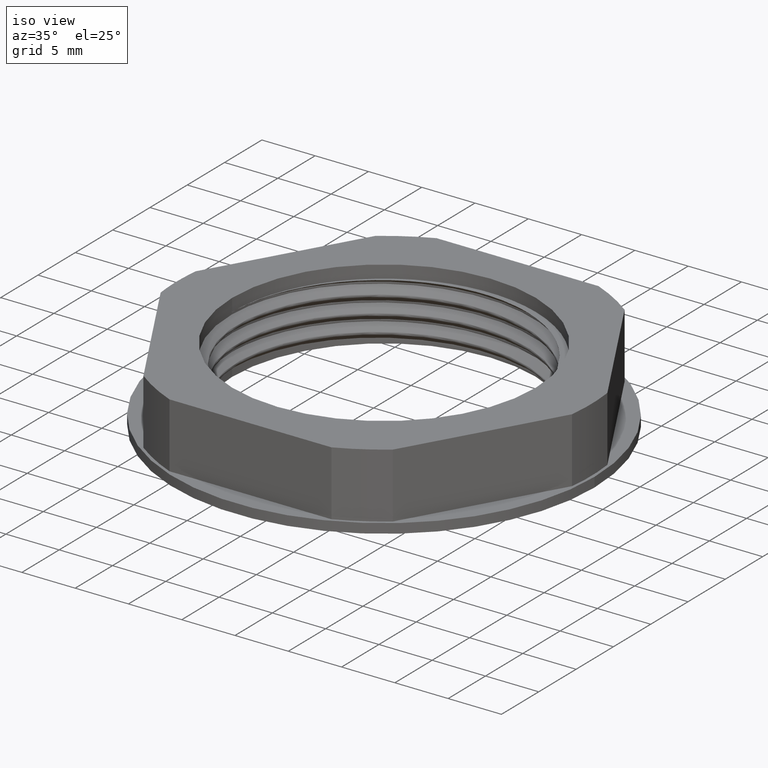
[diagram: clean part render]
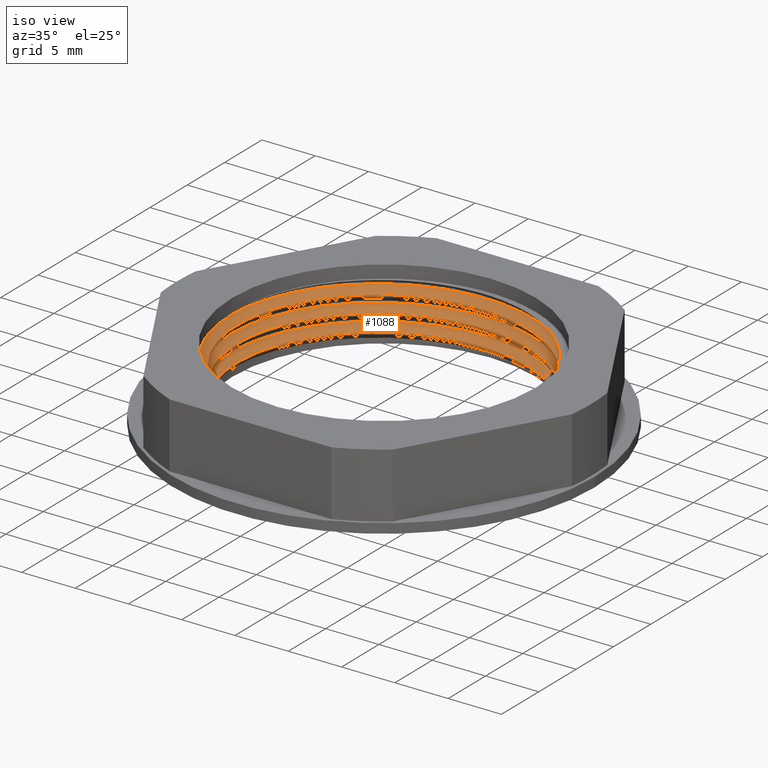
[diagram: same view with one face highlighted and labeled with its STEP entity id]
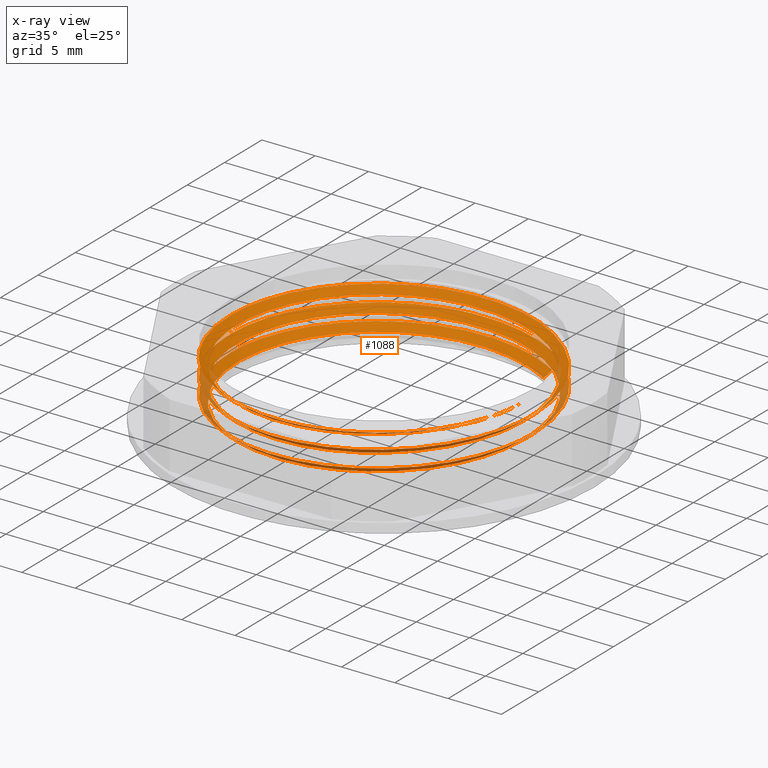
[diagram: x-ray of the same camera — body ghosted, the highlighted face saturated]
A machine part, iso view. The second image highlights one B-rep face of the part: STEP entity #1088.
The next image is the same camera in x-ray: the body ghosted, the highlighted face saturated — about 6% of this face is hidden behind the body in this view.
In plain terms, the highlighted face is a freeform B-spline surface patch.
Its self-contained STEP definition (entity closure, byte-faithful):
#367 = CARTESIAN_POINT ( 'NONE',  ( 2351.256202455848300, 862.0104033552461300, 19.02106889814721000 ) ) ;
#368 = CARTESIAN_POINT ( 'NONE',  ( 2356.367954869249800, 859.0591317233379400, 19.12031889814720400 ) ) ;
#369 = CARTESIAN_POINT ( 'NONE',  ( 2361.479707282652300, 856.1078600914298700, 19.21956889814720200 ) ) ;
#371 = CARTESIAN_POINT ( 'NONE',  ( 2370.617954869250300, 883.7408557311941900, 18.32631889814720300 ) ) ;
#373 = CARTESIAN_POINT ( 'NONE',  ( 2367.181126261960800, 857.6355507026470400, 19.31881889814720300 ) ) ;
#374 = CARTESIAN_POINT ( 'NONE',  ( 2375.833816873178000, 864.2749937272664100, 19.51731889814720600 ) ) ;
#376 = CARTESIAN_POINT ( 'NONE',  ( 2359.804783476538900, 885.1644367518852100, 18.52481889814720300 ) ) ;
#377 = CARTESIAN_POINT ( 'NONE',  ( 2378.785088505086200, 869.3867461406681500, 19.61656889814720400 ) ) ;
#379 = CARTESIAN_POINT ( 'NONE',  ( 2370.617954869250300, 883.7408557311941900, 19.91431889814720800 ) ) ;
#380 = CARTESIAN_POINT ( 'NONE',  ( 2365.506202455847900, 886.6921273631023700, 20.01356889814720900 ) ) ;
#381 = CARTESIAN_POINT ( 'NONE',  ( 2354.103364497230800, 883.6367461406678100, 20.21206889814720500 ) ) ;
#383 = CARTESIAN_POINT ( 'NONE',  ( 2354.103364497230800, 883.6367461406678100, 18.62406889814721100 ) ) ;
#384 = CARTESIAN_POINT ( 'NONE',  ( 2351.152092865321700, 878.5249937272658400, 20.31131889814720300 ) ) ;
#389 = CARTESIAN_POINT ( 'NONE',  ( 2377.257397893868500, 875.0881651199770200, 19.71581889814720500 ) ) ;
#390 = CARTESIAN_POINT ( 'NONE',  ( 2348.200821233413500, 873.4132413138639800, 20.41056889814720100 ) ) ;
#391 = CARTESIAN_POINT ( 'NONE',  ( 2349.728511844631600, 867.7118223345551100, 20.50981889814720600 ) ) ;
#396 = CARTESIAN_POINT ( 'NONE',  ( 2365.506202455847900, 886.6921273631023700, 18.42556889814720800 ) ) ;
#397 = FACE_OUTER_BOUND ( 'NONE', #1522, .T. ) ;
#399 = CARTESIAN_POINT ( 'NONE',  ( 2372.882545241269800, 859.1632413138643200, 19.41806889814720400 ) ) ;
#401 = CARTESIAN_POINT ( 'NONE',  ( 2375.729707282650900, 880.7895840992860000, 19.81506889814720700 ) ) ;
#403 = CARTESIAN_POINT ( 'NONE',  ( 2348.200821233413500, 873.4132413138639800, 18.82256889814720300 ) ) ;
#405 = CARTESIAN_POINT ( 'NONE',  ( 2359.804783476538900, 885.1644367518852100, 20.11281889814720400 ) ) ;
#419 = CARTESIAN_POINT ( 'NONE',  ( 2351.152092865321700, 878.5249937272658400, 18.72331889814720500 ) ) ;
#422 = CARTESIAN_POINT ( 'NONE',  ( 2349.728511844631600, 867.7118223345551100, 18.92181889814720100 ) ) ;
#423 = CARTESIAN_POINT ( 'NONE',  ( 2348.200821233413500, 873.4132413138639800, 23.58656889814721300 ) ) ;
#424 = CARTESIAN_POINT ( 'NONE',  ( 2375.833816873178000, 864.2749937272664100, 24.28131889814720500 ) ) ;
#425 = CARTESIAN_POINT ( 'NONE',  ( 2377.257397893868500, 875.0881651199770200, 24.47981889814720800 ) ) ;
#426 = CARTESIAN_POINT ( 'NONE',  ( 2359.804783476538900, 885.1644367518852100, 24.87681889814720300 ) ) ;
#427 = CARTESIAN_POINT ( 'NONE',  ( 2372.882545241269800, 859.1632413138643200, 22.59406889814720300 ) ) ;
#428 = CARTESIAN_POINT ( 'NONE',  ( 2375.729707282650900, 880.7895840992860000, 21.40306889814720000 ) ) ;
#429 = CARTESIAN_POINT ( 'NONE',  ( 2365.506202455847900, 886.6921273631023700, 21.60156889814721000 ) ) ;
#430 = CARTESIAN_POINT ( 'NONE',  ( 2375.833816873178000, 864.2749937272664100, 22.69331889814720800 ) ) ;
#431 = CARTESIAN_POINT ( 'NONE',  ( 2377.257397893868500, 875.0881651199770200, 22.89181889814720300 ) ) ;
#432 = CARTESIAN_POINT ( 'NONE',  ( 2351.152092865321700, 878.5249937272658400, 25.07531889814720200 ) ) ;
#433 = CARTESIAN_POINT ( 'NONE',  ( 2348.200821233413500, 873.4132413138639800, 25.17456889814720400 ) ) ;
#434 = CARTESIAN_POINT ( 'NONE',  ( 2375.729707282650900, 880.7895840992860000, 24.57906889814720200 ) ) ;
#435 = CARTESIAN_POINT ( 'NONE',  ( 2351.152092865321700, 878.5249937272658400, 23.48731889814720100 ) ) ;
#436 = CARTESIAN_POINT ( 'NONE',  ( 2370.617954869250300, 883.7408557311941900, 24.67831889814720400 ) ) ;
#437 = CARTESIAN_POINT ( 'NONE',  ( 2356.367954869249800, 859.0591317233379400, 22.29631889814720600 ) ) ;
#438 = CARTESIAN_POINT ( 'NONE',  ( 2349.728511844631600, 867.7118223345551100, 25.27381889814720100 ) ) ;
#439 = CARTESIAN_POINT ( 'NONE',  ( 2351.256202455848300, 862.0104033552461300, 22.19706889814720100 ) ) ;
#440 = CARTESIAN_POINT ( 'NONE',  ( 2361.479707282652300, 856.1078600914298700, 22.39556889814720400 ) ) ;
#441 = CARTESIAN_POINT ( 'NONE',  ( 2354.103364497230800, 883.6367461406678100, 24.97606889814720400 ) ) ;
#442 = CARTESIAN_POINT ( 'NONE',  ( 2365.506202455847900, 886.6921273631023700, 24.77756889814721200 ) ) ;
#443 = CARTESIAN_POINT ( 'NONE',  ( 2349.728511844631600, 867.7118223345551100, 22.09781889814720300 ) ) ;
#444 = CARTESIAN_POINT ( 'NONE',  ( 2356.367954869249800, 859.0591317233379400, 20.70831889814720100 ) ) ;
#445 = CARTESIAN_POINT ( 'NONE',  ( 2378.785088505086200, 869.3867461406681500, 21.20456889814720500 ) ) ;
#446 = CARTESIAN_POINT ( 'NONE',  ( 2361.479707282652300, 856.1078600914298700, 20.80756889814720300 ) ) ;
#447 = CARTESIAN_POINT ( 'NONE',  ( 2377.257397893868500, 875.0881651199770200, 21.30381889814721000 ) ) ;
#448 = CARTESIAN_POINT ( 'NONE',  ( 2375.833816873178000, 864.2749937272664100, 21.10531889814720300 ) ) ;
#449 = CARTESIAN_POINT ( 'NONE',  ( 2372.882545241269800, 859.1632413138643200, 21.00606889814720200 ) ) ;
#450 = CARTESIAN_POINT ( 'NONE',  ( 2351.256202455848300, 862.0104033552461300, 20.60906889814720300 ) ) ;
#451 = CARTESIAN_POINT ( 'NONE',  ( 2370.617954869250300, 883.7408557311941900, 21.50231889814720200 ) ) ;
#452 = CARTESIAN_POINT ( 'NONE',  ( 2354.103364497230800, 883.6367461406678100, 21.80006889814720200 ) ) ;
#453 = CARTESIAN_POINT ( 'NONE',  ( 2367.181126261960800, 857.6355507026470400, 20.90681889814720400 ) ) ;
#454 = CARTESIAN_POINT ( 'NONE',  ( 2351.152092865321700, 878.5249937272658400, 21.89931889814720400 ) ) ;
#455 = CARTESIAN_POINT ( 'NONE',  ( 2348.200821233413500, 873.4132413138639800, 21.99856889814720500 ) ) ;
#456 = CARTESIAN_POINT ( 'NONE',  ( 2367.181126261960800, 857.6355507026470400, 22.49481889814720100 ) ) ;
#457 = CARTESIAN_POINT ( 'NONE',  ( 2370.617954869250300, 883.7408557311941900, 23.09031889814720300 ) ) ;
#458 = CARTESIAN_POINT ( 'NONE',  ( 2365.506202455847900, 886.6921273631023700, 23.18956889814721500 ) ) ;
#459 = CARTESIAN_POINT ( 'NONE',  ( 2354.103364497230800, 883.6367461406678100, 23.38806889814720300 ) ) ;
#460 = CARTESIAN_POINT ( 'NONE',  ( 2349.728511844631600, 867.7118223345551100, 23.68581889814720400 ) ) ;
#461 = CARTESIAN_POINT ( 'NONE',  ( 2351.256202455848300, 862.0104033552461300, 23.78506889814720200 ) ) ;
#462 = CARTESIAN_POINT ( 'NONE',  ( 2367.181126261960800, 857.6355507026470400, 24.08281889814720600 ) ) ;
#463 = CARTESIAN_POINT ( 'NONE',  ( 2378.785088505086200, 869.3867461406681500, 22.79256889814720200 ) ) ;
#464 = CARTESIAN_POINT ( 'NONE',  ( 2356.367954869249800, 859.0591317233379400, 23.88431889814720300 ) ) ;
#465 = CARTESIAN_POINT ( 'NONE',  ( 2372.882545241269800, 859.1632413138643200, 24.18206889814720000 ) ) ;
#466 = CARTESIAN_POINT ( 'NONE',  ( 2361.479707282652300, 856.1078600914298700, 23.98356889814721200 ) ) ;
#467 = CARTESIAN_POINT ( 'NONE',  ( 2378.785088505086200, 869.3867461406681500, 24.38056889814721000 ) ) ;
#468 = CARTESIAN_POINT ( 'NONE',  ( 2359.804783476538900, 885.1644367518852100, 21.70081889814720100 ) ) ;
#469 = CARTESIAN_POINT ( 'NONE',  ( 2359.804783476538900, 885.1644367518852100, 23.28881889814720600 ) ) ;
#470 = CARTESIAN_POINT ( 'NONE',  ( 2375.729707282650900, 880.7895840992860000, 22.99106889814720100 ) ) ;
#471 = CARTESIAN_POINT ( 'NONE',  ( 2367.000879983597800, 858.3082389713724800, 18.73445469250918900 ) ) ;
#472 = CARTESIAN_POINT ( 'NONE',  ( 2370.269745798523200, 883.1377399290399800, 19.32995469250919400 ) ) ;
#473 = CARTESIAN_POINT ( 'NONE',  ( 2365.407812130055400, 885.9447786413123800, 17.84120469250918700 ) ) ;
#474 = CARTESIAN_POINT ( 'NONE',  ( 2354.562247379748000, 883.0387183250078400, 18.03970469250919400 ) ) ;
#475 = CARTESIAN_POINT ( 'NONE',  ( 2350.112960074550800, 866.2770420076134300, 25.29879547818205800 ) ) ;
#476 = CARTESIAN_POINT ( 'NONE',  ( 2376.584709625143700, 874.9079188416142200, 20.71945469250919600 ) ) ;
#477 = CARTESIAN_POINT ( 'NONE',  ( 2361.578097608444300, 856.8552088132200900, 20.22320469250918900 ) ) ;
#478 = CARTESIAN_POINT ( 'NONE',  ( 2370.269745798523200, 883.1377399290399800, 20.91795469250919100 ) ) ;
#479 = CARTESIAN_POINT ( 'NONE',  ( 2365.407812130055400, 885.9447786413123800, 21.01720469250919300 ) ) ;
#480 = CARTESIAN_POINT ( 'NONE',  ( 2375.131679466991500, 880.3307012167678100, 19.23070469250918500 ) ) ;
#481 = CARTESIAN_POINT ( 'NONE',  ( 2351.854230271508200, 862.4692862377643200, 21.61270469250918700 ) ) ;
#482 = CARTESIAN_POINT ( 'NONE',  ( 2361.578097608444300, 856.8552088132200900, 21.81120469250919700 ) ) ;
#483 = CARTESIAN_POINT ( 'NONE',  ( 2372.423662358751700, 859.7612691295246300, 20.42170469250918800 ) ) ;
#484 = CARTESIAN_POINT ( 'NONE',  ( 2370.269745798523200, 883.1377399290399800, 17.74195469250918900 ) ) ;
#485 = CARTESIAN_POINT ( 'NONE',  ( 2372.423662358751700, 859.7612691295246300, 18.83370469250919000 ) ) ;
#486 = CARTESIAN_POINT ( 'NONE',  ( 2376.584709625143700, 874.9079188416142200, 19.13145469250918800 ) ) ;
#487 = CARTESIAN_POINT ( 'NONE',  ( 2359.985029754901500, 884.4917484831597700, 19.52845469250919000 ) ) ;
#488 = CARTESIAN_POINT ( 'NONE',  ( 2351.755208667475900, 878.1767846565395500, 19.72695469250918900 ) ) ;
#489 = CARTESIAN_POINT ( 'NONE',  ( 2378.037739783295800, 869.4851364664605200, 20.62020469250919100 ) ) ;
#490 = CARTESIAN_POINT ( 'NONE',  ( 2367.000879983597800, 858.3082389713724800, 20.32245469250919000 ) ) ;
#491 = CARTESIAN_POINT ( 'NONE',  ( 2375.131679466991500, 880.3307012167678100, 20.81870469250918600 ) ) ;
#492 = CARTESIAN_POINT ( 'NONE',  ( 2348.948169955203900, 873.3148509880717300, 18.23820469250919300 ) ) ;
#493 = CARTESIAN_POINT ( 'NONE',  ( 2354.562247379748000, 883.0387183250078400, 19.62770469250918700 ) ) ;
#494 = CARTESIAN_POINT ( 'NONE',  ( 2351.755208667475900, 878.1767846565395500, 21.31495469250919000 ) ) ;
#495 = CARTESIAN_POINT ( 'NONE',  ( 2359.985029754901500, 884.4917484831597700, 17.94045469250919200 ) ) ;
#496 = CARTESIAN_POINT ( 'NONE',  ( 2356.716163939976900, 859.6622475254921500, 20.12395469250918700 ) ) ;
#497 = CARTESIAN_POINT ( 'NONE',  ( 2350.401200113356500, 867.8920686129179100, 21.51345469250918900 ) ) ;
#498 = CARTESIAN_POINT ( 'NONE',  ( 2378.037739783295800, 869.4851364664605200, 19.03220469250919000 ) ) ;
#499 = CARTESIAN_POINT ( 'NONE',  ( 2356.716163939976900, 859.6622475254921500, 21.71195469250918800 ) ) ;
#500 = CARTESIAN_POINT ( 'NONE',  ( 2359.985029754901500, 884.4917484831597700, 21.11645469250918700 ) ) ;
#501 = CARTESIAN_POINT ( 'NONE',  ( 2351.854230271508200, 862.4692862377643200, 20.02470469250918900 ) ) ;
#502 = CARTESIAN_POINT ( 'NONE',  ( 2351.755208667475900, 878.1767846565395500, 18.13895469250919100 ) ) ;
#503 = CARTESIAN_POINT ( 'NONE',  ( 2350.401200113356500, 867.8920686129179100, 18.33745469250918700 ) ) ;
#504 = CARTESIAN_POINT ( 'NONE',  ( 2351.854230271508200, 862.4692862377643200, 18.43670469250919200 ) ) ;
#505 = CARTESIAN_POINT ( 'NONE',  ( 2356.716163939976900, 859.6622475254921500, 18.53595469250919000 ) ) ;
#506 = CARTESIAN_POINT ( 'NONE',  ( 2361.578097608444300, 856.8552088132200900, 18.63520469250919100 ) ) ;
#507 = CARTESIAN_POINT ( 'NONE',  ( 2365.407812130055400, 885.9447786413123800, 19.42920469250919200 ) ) ;
#508 = CARTESIAN_POINT ( 'NONE',  ( 2350.401200113356500, 867.8920686129179100, 19.92545469250919200 ) ) ;
#509 = CARTESIAN_POINT ( 'NONE',  ( 2375.230701071023800, 864.6232027979925800, 20.52095469250918900 ) ) ;
#510 = CARTESIAN_POINT ( 'NONE',  ( 2348.948169955203900, 873.3148509880717300, 19.82620469250919400 ) ) ;
#511 = CARTESIAN_POINT ( 'NONE',  ( 2354.562247379748000, 883.0387183250078400, 21.21570469250918800 ) ) ;
#512 = CARTESIAN_POINT ( 'NONE',  ( 2348.948169955203900, 873.3148509880717300, 21.41420469250919800 ) ) ;
#513 = CARTESIAN_POINT ( 'NONE',  ( 2350.785046175630200, 864.9523928839574900, 25.32536875901763900 ) ) ;
#514 = CARTESIAN_POINT ( 'NONE',  ( 2375.230701071023800, 864.6232027979925800, 18.93295469250919200 ) ) ;
#515 = CARTESIAN_POINT ( 'NONE',  ( 2378.037739783295800, 869.4851364664605200, 22.20820469250919500 ) ) ;
#516 = CARTESIAN_POINT ( 'NONE',  ( 2351.854230271508200, 862.4692862377643200, 23.20070469250919100 ) ) ;
#517 = CARTESIAN_POINT ( 'NONE',  ( 2356.716163939976900, 859.6622475254921500, 23.29995469250918900 ) ) ;
#518 = CARTESIAN_POINT ( 'NONE',  ( 2367.000879983597800, 858.3082389713724800, 21.91045469250919100 ) ) ;
#519 = CARTESIAN_POINT ( 'NONE',  ( 2365.407812130055400, 885.9447786413123800, 22.60520469250919400 ) ) ;
#520 = CARTESIAN_POINT ( 'NONE',  ( 2359.985029754901500, 884.4917484831597700, 22.70445469250918800 ) ) ;
#521 = CARTESIAN_POINT ( 'NONE',  ( 2372.423662358751700, 859.7612691295246300, 22.00970469250919200 ) ) ;
#522 = CARTESIAN_POINT ( 'NONE',  ( 2375.230701071023800, 864.6232027979925800, 22.10895469250919000 ) ) ;
#523 = CARTESIAN_POINT ( 'NONE',  ( 2376.584709625143700, 874.9079188416142200, 22.30745469250918900 ) ) ;
#524 = CARTESIAN_POINT ( 'NONE',  ( 2375.131679466991500, 880.3307012167678100, 22.40670469250918700 ) ) ;
#525 = CARTESIAN_POINT ( 'NONE',  ( 2370.269745798523200, 883.1377399290399800, 22.50595469250919200 ) ) ;
#526 = CARTESIAN_POINT ( 'NONE',  ( 2354.562247379748000, 883.0387183250078400, 22.80370469250918900 ) ) ;
#527 = CARTESIAN_POINT ( 'NONE',  ( 2351.755208667475900, 878.1767846565395500, 22.90295469250918700 ) ) ;
#528 = CARTESIAN_POINT ( 'NONE',  ( 2348.948169955203900, 873.3148509880717300, 23.00220469250919900 ) ) ;
#529 = CARTESIAN_POINT ( 'NONE',  ( 2350.401200113356500, 867.8920686129179100, 23.10145469250919000 ) ) ;
#530 = CARTESIAN_POINT ( 'NONE',  ( 2376.584709625143700, 874.9079188416142200, 23.89545469250919400 ) ) ;
#531 = CARTESIAN_POINT ( 'NONE',  ( 2367.000879983597800, 858.3082389713724800, 23.49845469250919200 ) ) ;
#532 = CARTESIAN_POINT ( 'NONE',  ( 2372.423662358751700, 859.7612691295246300, 23.59770469250919000 ) ) ;
#533 = CARTESIAN_POINT ( 'NONE',  ( 2375.230701071023800, 864.6232027979925800, 23.69695469250918800 ) ) ;
#534 = CARTESIAN_POINT ( 'NONE',  ( 2359.985029754901500, 884.4917484831597700, 24.29245469250918900 ) ) ;
#535 = CARTESIAN_POINT ( 'NONE',  ( 2354.562247379748000, 883.0387183250078400, 24.39170469250918700 ) ) ;
#536 = CARTESIAN_POINT ( 'NONE',  ( 2351.406100081185700, 865.2674964766678200, 24.74100455337963900 ) ) ;
#542 = CARTESIAN_POINT ( 'NONE',  ( 2350.401200113356500, 867.8920686129179100, 24.68945469250918700 ) ) ;
#544 = CARTESIAN_POINT ( 'NONE',  ( 2370.269745798523200, 883.1377399290399800, 24.09395469250919000 ) ) ;
#548 = CARTESIAN_POINT ( 'NONE',  ( 2350.766859801397900, 866.5274080788661900, 24.71443127254405100 ) ) ;
#550 = CARTESIAN_POINT ( 'NONE',  ( 2378.037739783295800, 869.4851364664605200, 23.79620469250919300 ) ) ;
#551 = CARTESIAN_POINT ( 'NONE',  ( 2365.407812130055400, 885.9447786413123800, 24.19320469250919100 ) ) ;
#557 = CARTESIAN_POINT ( 'NONE',  ( 2351.755208667475900, 878.1767846565395500, 24.49095469250919200 ) ) ;
#561 = CARTESIAN_POINT ( 'NONE',  ( 2375.131679466991500, 880.3307012167678100, 23.99470469250918500 ) ) ;
#562 = CARTESIAN_POINT ( 'NONE',  ( 2348.948169955203900, 873.3148509880717300, 24.59020469250919300 ) ) ;
#565 = CARTESIAN_POINT ( 'NONE',  ( 2361.578097608444300, 856.8552088132200900, 23.39920469250919400 ) ) ;
#596 = CARTESIAN_POINT ( 'NONE',  ( 2376.631052331841600, 867.7652102018363400, 22.22366552085516000 ) ) ;
#597 = CARTESIAN_POINT ( 'NONE',  ( 2376.896333161973000, 869.0892562829921000, 22.22366552085515700 ) ) ;
#598 = CARTESIAN_POINT ( 'NONE',  ( 2358.780539437870600, 858.0965024912411500, 22.22366552085515000 ) ) ;
#599 = CARTESIAN_POINT ( 'NONE',  ( 2359.748616864248600, 857.8149212742239300, 22.22366552085515000 ) ) ;
#600 = CARTESIAN_POINT ( 'NONE',  ( 2361.384176331187500, 857.4918972147455600, 22.22366552085515700 ) ) ;
#601 = CARTESIAN_POINT ( 'NONE',  ( 2362.382548448675600, 857.4108603207588400, 22.22366552085515000 ) ) ;
#602 = CARTESIAN_POINT ( 'NONE',  ( 2372.549603161976400, 860.9797946231300300, 22.22366552085515300 ) ) ;
#603 = CARTESIAN_POINT ( 'NONE',  ( 2356.916536518440800, 858.8514644426162500, 22.22366552085515300 ) ) ;
#604 = CARTESIAN_POINT ( 'NONE',  ( 2363.389904891882900, 857.3892977258452700, 22.22366552085515000 ) ) ;
#605 = CARTESIAN_POINT ( 'NONE',  ( 2363.728687536968700, 857.3983243260178100, 22.22366552085514300 ) ) ;
#606 = CARTESIAN_POINT ( 'NONE',  ( 2367.343983498363700, 858.0044145862070800, 22.22366552085515700 ) ) ;
#607 = CARTESIAN_POINT ( 'NONE',  ( 2360.725690863529500, 857.5928954299831700, 22.22366552085515700 ) ) ;
#608 = CARTESIAN_POINT ( 'NONE',  ( 2370.960377882609000, 859.7341970034212900, 22.22366552085516400 ) ) ;
#609 = CARTESIAN_POINT ( 'NONE',  ( 2372.035494691557200, 860.5348968864436800, 22.22366552085516000 ) ) ;
#610 = CARTESIAN_POINT ( 'NONE',  ( 2366.700378576095300, 857.8224699880129300, 22.22366552085501800 ) ) ;
#611 = CARTESIAN_POINT ( 'NONE',  ( 2358.460218229186000, 858.2066298488232400, 22.22366552085515300 ) ) ;
#612 = CARTESIAN_POINT ( 'NONE',  ( 2369.225064459304100, 858.7425379504901500, 22.22366552085516000 ) ) ;
#613 = CARTESIAN_POINT ( 'NONE',  ( 2370.398130122513100, 859.3760013238583000, 22.22366552085516400 ) ) ;
#614 = CARTESIAN_POINT ( 'NONE',  ( 2373.494586128573200, 861.9263925259929200, 22.22366552085515300 ) ) ;
#615 = CARTESIAN_POINT ( 'NONE',  ( 2365.395531152154500, 857.5508026017937500, 22.22366552085502900 ) ) ;
#616 = CARTESIAN_POINT ( 'NONE',  ( 2368.612395885310000, 858.4665902609189100, 22.22366552085516000 ) ) ;
#617 = CARTESIAN_POINT ( 'NONE',  ( 2373.930013631068500, 862.4309886151545500, 22.22366552085514600 ) ) ;
#618 = CARTESIAN_POINT ( 'NONE',  ( 2362.717119758266600, 857.3956352357334900, 22.22366552085515000 ) ) ;
#619 = CARTESIAN_POINT ( 'NONE',  ( 2374.717834169454400, 863.5102957968207400, 22.22366552085516000 ) ) ;
#620 = CARTESIAN_POINT ( 'NONE',  ( 2364.734241014452900, 857.4613288888123200, 22.22366552085513900 ) ) ;
#621 = CARTESIAN_POINT ( 'NONE',  ( 2357.520374751651600, 858.5679501445151800, 22.22366552085515000 ) ) ;
#622 = CARTESIAN_POINT ( 'NONE',  ( 2375.078940434769700, 864.0776493649682400, 22.22366552085515700 ) ) ;
#623 = CARTESIAN_POINT ( 'NONE',  ( 2375.250435036220100, 864.3701484710718400, 22.22366552085514300 ) ) ;
#624 = CARTESIAN_POINT ( 'NONE',  ( 2375.727871863630800, 865.2579399508495000, 22.22366552085514600 ) ) ;
#625 = CARTESIAN_POINT ( 'NONE',  ( 2375.999317254984400, 865.8675051400117600, 22.22366552085514300 ) ) ;
#626 = CARTESIAN_POINT ( 'NONE',  ( 2374.527822415729100, 863.2346059520824600, 22.22366552085514300 ) ) ;
#627 = CARTESIAN_POINT ( 'NONE',  ( 2359.424707841953000, 857.9007284021533900, 22.22366552085515300 ) ) ;
#628 = CARTESIAN_POINT ( 'NONE',  ( 2376.450903904180900, 867.1211416203309500, 22.22366552085514600 ) ) ;
#630 = CARTESIAN_POINT ( 'NONE',  ( 2376.979375005825700, 869.7597889469777800, 22.22366552085515700 ) ) ;
#631 = CARTESIAN_POINT ( 'NONE',  ( 2377.012147316678700, 870.4351016267032700, 22.22366552085513900 ) ) ;
#684 = DIRECTION ( 'NONE',  ( -0.3830222215599371500, -0.6634139481687801900, -0.6427876096864355600 ) ) ;
#688 = CARTESIAN_POINT ( 'NONE',  ( 2370.443850333886500, 883.4392978301170800, 18.03413679532819800 ) ) ;
#693 = LINE ( 'NONE', #688, #2127 ) ;
#986 = EDGE_CURVE ( 'NONE', #1459, #1479, #1282, .T. ) ;
#987 = EDGE_CURVE ( 'NONE', #1465, #1464, #1269, .T. ) ;
#992 = EDGE_CURVE ( 'NONE', #1484, #1462, #1279, .T. ) ;
#997 = EDGE_CURVE ( 'NONE', #1478, #1493, #1278, .T. ) ;
#998 = EDGE_CURVE ( 'NONE', #1464, #1459, #1275, .T. ) ;
#999 = EDGE_CURVE ( 'NONE', #1493, #1465, #1270, .T. ) ;
#1002 = EDGE_CURVE ( 'NONE', #1486, #1478, #1276, .T. ) ;
#1037 = EDGE_CURVE ( 'NONE', #1479, #1462, #2041, .T. ) ;
#1045 = EDGE_CURVE ( 'NONE', #1486, #1484, #693, .T. ) ;
#1088 = ADVANCED_FACE ( 'NONE', ( #397 ), #1288, .F. ) ;
#1131 = CARTESIAN_POINT ( 'NONE',  ( 2377.742954869248900, 871.3999937272658400, 21.23842122485435600 ) ) ;
#1132 = CARTESIAN_POINT ( 'NONE',  ( 2349.242954869251700, 871.3999937272659500, 20.44442122485436300 ) ) ;
#1154 = CARTESIAN_POINT ( 'NONE',  ( 2349.242954869250800, 871.3999937272661800, 22.03242122485435700 ) ) ;
#1156 = CARTESIAN_POINT ( 'NONE',  ( 2377.012147316678700, 870.4351016267032700, 22.22366552085513900 ) ) ;
#1168 = CARTESIAN_POINT ( 'NONE',  ( 2377.742954869249800, 871.3999937272659500, 19.65042122485436200 ) ) ;
#1170 = CARTESIAN_POINT ( 'NONE',  ( 2353.136878759966700, 861.6115215472613000, 22.22366552085515000 ) ) ;
#1194 = CARTESIAN_POINT ( 'NONE',  ( 2349.242954869251700, 871.3999937272667500, 18.85642122485435100 ) ) ;
#1210 = CARTESIAN_POINT ( 'NONE',  ( 2370.269745798523200, 883.1377399290402100, 17.74195469250919300 ) ) ;
#1213 = CARTESIAN_POINT ( 'NONE',  ( 2370.617954869250300, 883.7408557311943000, 18.32631889814722500 ) ) ;
#1269 =( BOUNDED_CURVE ( )  B_SPLINE_CURVE ( 2, ( #1821, #1827, #1813, #1811, #1816, #1814, #1815, #1824, #1825, #1826, #1835 ),
 .UNSPECIFIED., .F., .T. ) 
 B_SPLINE_CURVE_WITH_KNOTS ( ( 3, 2, 2, 2, 2, 3 ),
 ( 0.1202000245907709200, 0.1239782417527531000, 0.1352482468955383300, 0.1465182520383235500, 0.1577882571811087800, 0.1652800451619114700 ),
 .UNSPECIFIED. ) 
 CURVE ( )  GEOMETRIC_REPRESENTATION_ITEM ( )  RATIONAL_B_SPLINE_CURVE ( ( 0.9660722070828948700, 0.9744809649152577100, 1.000000000000000000, 0.9238795325112868500, 1.000000000000000000, 0.9238795325112868500, 1.000000000000000000, 0.9238795325112868500, 1.000000000000000000, 0.9493985675960317000, 0.9660722070828933200 ) ) 
 REPRESENTATION_ITEM ( '' )  );
#1270 =( BOUNDED_CURVE ( )  B_SPLINE_CURVE ( 2, ( #1931, #1933, #1952, #1980, #1973, #1966, #1956, #1949, #1994, #1988, #1985 ),
 .UNSPECIFIED., .F., .T. ) 
 B_SPLINE_CURVE_WITH_KNOTS ( ( 3, 2, 2, 2, 2, 3 ),
 ( 0.07512000311263053500, 0.07889822035062975200, 0.09016822572016482100, 0.1014382310896998800, 0.1127082364592349500, 0.1202000245907709200 ),
 .UNSPECIFIED. ) 
 CURVE ( )  GEOMETRIC_REPRESENTATION_ITEM ( )  RATIONAL_B_SPLINE_CURVE ( ( 0.9660722070828937600, 0.9744809649152561500, 0.9999999999999998900, 0.9238795325112866300, 0.9999999999999998900, 0.9238795325112866300, 0.9999999999999998900, 0.9238795325112866300, 0.9999999999999998900, 0.9493985675960294700, 0.9660722070828943200 ) ) 
 REPRESENTATION_ITEM ( '' )  );
#1275 =( BOUNDED_CURVE ( )  B_SPLINE_CURVE ( 2, ( #1917, #1899, #1913, #1941, #1916, #1897, #1929, #1918, #1919, #1920, #1922 ),
 .UNSPECIFIED., .F., .T. ) 
 B_SPLINE_CURVE_WITH_KNOTS ( ( 3, 2, 2, 2, 2, 3 ),
 ( 0.1652800451619114700, 0.1690582622478773400, 0.1803282671639127300, 0.1915982720799480600, 0.2028682769959834500, 0.2103600648260531800 ),
 .UNSPECIFIED. ) 
 CURVE ( )  GEOMETRIC_REPRESENTATION_ITEM ( )  RATIONAL_B_SPLINE_CURVE ( ( 0.9660722070828922100, 0.9744809649152538200, 0.9999999999999998900, 0.9238795325112866300, 0.9999999999999998900, 0.9238795325112866300, 0.9999999999999998900, 0.9238795325112866300, 0.9999999999999998900, 0.9493985675960308100, 0.9660722070828935400 ) ) 
 REPRESENTATION_ITEM ( '' )  );
#1276 =( BOUNDED_CURVE ( )  B_SPLINE_CURVE ( 2, ( #1990, #1986, #1993, #1983, #1969, #1981, #1996 ),
 .UNSPECIFIED., .F., .F. ) 
 B_SPLINE_CURVE_WITH_KNOTS ( ( 3, 2, 2, 3 ),
 ( 0.0000000000000000000, 0.01127307576739649600, 0.02254615153479299200, 0.03003998072749053700 ),
 .UNSPECIFIED. ) 
 CURVE ( )  GEOMETRIC_REPRESENTATION_ITEM ( )  RATIONAL_B_SPLINE_CURVE ( ( 1.000000000000000000, 0.9238795325112868500, 1.000000000000000000, 0.9238795325112868500, 1.000000000000000000, 0.9493985675960338000, 0.9660722070828917700 ) ) 
 REPRESENTATION_ITEM ( '' )  );
#1278 =( BOUNDED_CURVE ( )  B_SPLINE_CURVE ( 2, ( #1905, #1926, #1925, #1927, #1945, #1896, #1939, #1907, #1940, #1928, #1908 ),
 .UNSPECIFIED., .F., .T. ) 
 B_SPLINE_CURVE_WITH_KNOTS ( ( 3, 2, 2, 2, 2, 3 ),
 ( 0.03003998072749053700, 0.03381819804150727100, 0.04508820363779214600, 0.05635820923407701400, 0.06762821483036188200, 0.07512000311263053500 ),
 .UNSPECIFIED. ) 
 CURVE ( )  GEOMETRIC_REPRESENTATION_ITEM ( )  RATIONAL_B_SPLINE_CURVE ( ( 0.9660722070828908800, 0.9744809649152516000, 1.000000000000000000, 0.9238795325112867400, 1.000000000000000000, 0.9238795325112867400, 1.000000000000000000, 0.9238795325112867400, 1.000000000000000000, 0.9493985675960315800, 0.9660722070828931000 ) ) 
 REPRESENTATION_ITEM ( '' )  );
#1279 =( BOUNDED_CURVE ( )  B_SPLINE_CURVE ( 2, ( #1851, #1845, #1853, #1875, #1868, #1869, #1881, #1876, #1874, #1870, #1872, #1854, #1871, #1855, #1894, #1877, #1878, #1873, #1867, #1864, #1862, #1885, #1857, #1887, #1866, #1879, #1856, #1880, #1882, #1883, #1884, #1886, #1888, #1889, #1858, #1890, #1859, #1895, #1891, #1892, #1893, #1860, #1861, #1865, #1863, #1901, #1934 ),
 .UNSPECIFIED., .F., .T. ) 
 B_SPLINE_CURVE_WITH_KNOTS ( ( 3, 2, 2, 2, 2, 2, 2, 2, 2, 2, 2, 2, 2, 2, 2, 2, 2, 2, 2, 2, 2, 2, 2, 3 ),
 ( 0.0000000000000000000, 0.04429680704493898400, 0.08859361408987796700, 0.1328904211348169200, 0.1771872281797559300, 0.2214840352246949000, 0.2657808422696338300, 0.3100776493145728200, 0.3543744563595118700, 0.3986712634044508000, 0.4429680704493897900, 0.4872648774943287900, 0.5315616845392676600, 0.5758584915842067700, 0.6201552986291456500, 0.6644521056740846400, 0.7087489127190237400, 0.7530457197639626200, 0.7973425268089016100, 0.8416393338538404900, 0.8859361408987795900, 0.9302329479437185800, 0.9745297549886575700, 1.000000000000000000 ),
 .UNSPECIFIED. ) 
 CURVE ( )  GEOMETRIC_REPRESENTATION_ITEM ( )  RATIONAL_B_SPLINE_CURVE ( ( 1.000000000000000000, 0.9238795325112867400, 1.000000000000000000, 0.9238795325112867400, 1.000000000000000000, 0.9238795325112867400, 1.000000000000000000, 0.9238795325112867400, 1.000000000000000000, 0.9238795325112867400, 1.000000000000000000, 0.9238795325112867400, 1.000000000000000000, 0.9238795325112867400, 1.000000000000000000, 0.9238795325112867400, 1.000000000000000000, 0.9238795325112867400, 1.000000000000000000, 0.9238795325112867400, 1.000000000000000000, 0.9238795325112867400, 1.000000000000000000, 0.9238795325112867400, 1.000000000000000000, 0.9238795325112867400, 1.000000000000000000, 0.9238795325112867400, 1.000000000000000000, 0.9238795325112867400, 1.000000000000000000, 0.9238795325112867400, 1.000000000000000000, 0.9238795325112867400, 1.000000000000000000, 0.9238795325112867400, 1.000000000000000000, 0.9238795325112867400, 1.000000000000000000, 0.9238795325112867400, 1.000000000000000000, 0.9238795325112867400, 1.000000000000000000, 0.9238795325112867400, 1.000000000000000000, 0.9562314512793541600, 0.9627959055029058400 ) ) 
 REPRESENTATION_ITEM ( '' )  );
#1282 =( BOUNDED_CURVE ( )  B_SPLINE_CURVE ( 2, ( #1819, #1810, #1822, #1823, #1812 ),
 .UNSPECIFIED., .F., .F. ) 
 B_SPLINE_CURVE_WITH_KNOTS ( ( 3, 2, 3 ),
 ( 0.2103600648260531800, 0.2141295916178740100, 0.2212046952859008400 ),
 .UNSPECIFIED. ) 
 CURVE ( )  GEOMETRIC_REPRESENTATION_ITEM ( )  RATIONAL_B_SPLINE_CURVE ( ( 0.9660722070828937600, 0.9744809649152562600, 1.000000000000000000, 0.9521027893675315700, 0.9644822129191925600 ) ) 
 REPRESENTATION_ITEM ( '' )  );
#1288 =( BOUNDED_SURFACE ( )  B_SPLINE_SURFACE ( 1, 2, ( 
 ( #371, #396, #376, #383, #419, #403, #422, #367, #368, #369, #373, #399, #374, #377, #389, #401, #379, #380, #405, #381, #384, #390, #391, #450, #444, #446, #453, #449, #448, #445, #447, #428, #451, #429, #468, #452, #454, #455, #443, #439, #437, #440, #456, #427, #430, #463, #431, #470, #457, #458, #469, #459, #435, #423, #460, #461, #464, #466, #462, #465, #424, #467, #425, #434, #436, #442, #426, #441, #432, #433, #438, #475, #513 ),
 ( #484, #473, #495, #474, #502, #492, #503, #504, #505, #506, #471, #485, #514, #498, #486, #480, #472, #507, #487, #493, #488, #510, #508, #501, #496, #477, #490, #483, #509, #489, #476, #491, #478, #479, #500, #511, #494, #512, #497, #481, #499, #482, #518, #521, #522, #515, #523, #524, #525, #519, #520, #526, #527, #528, #529, #516, #517, #565, #531, #532, #533, #550, #530, #561, #544, #551, #534, #535, #557, #562, #542, #548, #536 ) ),
 .UNSPECIFIED., .F., .F., .T. ) 
 B_SPLINE_SURFACE_WITH_KNOTS ( ( 2, 2 ),
 ( 3, 2, 2, 2, 2, 2, 2, 2, 2, 2, 2, 2, 2, 2, 2, 2, 2, 2, 2, 2, 2, 2, 2, 2, 2, 2, 2, 2, 2, 2, 2, 2, 2, 2, 2, 2, 3 ),
 ( 0.0000000000000000000, 1.000000000000000000 ),
 ( 0.0000000000000000000, 0.02500000000000000100, 0.05000000000000000300, 0.07499999999999999700, 0.1000000000000000100, 0.1250000000000000000, 0.1499999999999999900, 0.1749999999999999900, 0.2000000000000000100, 0.2250000000000000100, 0.2500000000000000000, 0.2750000000000000200, 0.2999999999999999900, 0.3250000000000000100, 0.3499999999999999800, 0.3750000000000000000, 0.4000000000000000200, 0.4249999999999999900, 0.4500000000000000100, 0.4749999999999999800, 0.5000000000000000000, 0.5250000000000000200, 0.5500000000000000400, 0.5749999999999999600, 0.5999999999999999800, 0.6250000000000000000, 0.6500000000000000200, 0.6750000000000000400, 0.6999999999999999600, 0.7249999999999999800, 0.7500000000000000000, 0.7750000000000000200, 0.8000000000000000400, 0.8249999999999999600, 0.8499999999999999800, 0.8750000000000000000, 0.8816713607695867400 ),
 .UNSPECIFIED. ) 
 GEOMETRIC_REPRESENTATION_ITEM ( )  RATIONAL_B_SPLINE_SURFACE ( (
 ( 1.000000000000000000, 0.9238795325112867400, 1.000000000000000000, 0.9238795325112867400, 1.000000000000000000, 0.9238795325112867400, 1.000000000000000000, 0.9238795325112867400, 1.000000000000000000, 0.9238795325112867400, 1.000000000000000000, 0.9238795325112867400, 1.000000000000000000, 0.9238795325112867400, 1.000000000000000000, 0.9238795325112867400, 1.000000000000000000, 0.9238795325112867400, 1.000000000000000000, 0.9238795325112867400, 1.000000000000000000, 0.9238795325112867400, 1.000000000000000000, 0.9238795325112867400, 1.000000000000000000, 0.9238795325112867400, 1.000000000000000000, 0.9238795325112867400, 1.000000000000000000, 0.9238795325112867400, 1.000000000000000000, 0.9238795325112867400, 1.000000000000000000, 0.9238795325112867400, 1.000000000000000000, 0.9238795325112867400, 1.000000000000000000, 0.9238795325112867400, 1.000000000000000000, 0.9238795325112867400, 1.000000000000000000, 0.9238795325112867400, 1.000000000000000000, 0.9238795325112867400, 1.000000000000000000, 0.9238795325112867400, 1.000000000000000000, 0.9238795325112867400, 1.000000000000000000, 0.9238795325112867400, 1.000000000000000000, 0.9238795325112867400, 1.000000000000000000, 0.9238795325112867400, 1.000000000000000000, 0.9238795325112867400, 1.000000000000000000, 0.9238795325112867400, 1.000000000000000000, 0.9238795325112867400, 1.000000000000000000, 0.9238795325112867400, 1.000000000000000000, 0.9238795325112867400, 1.000000000000000000, 0.9238795325112867400, 1.000000000000000000, 0.9238795325112867400, 1.000000000000000000, 0.9238795325112867400, 1.000000000000000000, 0.9796869159773278200, 0.9702151049033096400),
 ( 1.000000000000000000, 0.9238795325112867400, 1.000000000000000000, 0.9238795325112867400, 1.000000000000000000, 0.9238795325112867400, 1.000000000000000000, 0.9238795325112867400, 1.000000000000000000, 0.9238795325112867400, 1.000000000000000000, 0.9238795325112867400, 1.000000000000000000, 0.9238795325112867400, 1.000000000000000000, 0.9238795325112867400, 1.000000000000000000, 0.9238795325112867400, 1.000000000000000000, 0.9238795325112867400, 1.000000000000000000, 0.9238795325112867400, 1.000000000000000000, 0.9238795325112867400, 1.000000000000000000, 0.9238795325112867400, 1.000000000000000000, 0.9238795325112867400, 1.000000000000000000, 0.9238795325112867400, 1.000000000000000000, 0.9238795325112867400, 1.000000000000000000, 0.9238795325112867400, 1.000000000000000000, 0.9238795325112867400, 1.000000000000000000, 0.9238795325112867400, 1.000000000000000000, 0.9238795325112867400, 1.000000000000000000, 0.9238795325112867400, 1.000000000000000000, 0.9238795325112867400, 1.000000000000000000, 0.9238795325112867400, 1.000000000000000000, 0.9238795325112867400, 1.000000000000000000, 0.9238795325112867400, 1.000000000000000000, 0.9238795325112867400, 1.000000000000000000, 0.9238795325112867400, 1.000000000000000000, 0.9238795325112867400, 1.000000000000000000, 0.9238795325112867400, 1.000000000000000000, 0.9238795325112867400, 1.000000000000000000, 0.9238795325112867400, 1.000000000000000000, 0.9238795325112867400, 1.000000000000000000, 0.9238795325112867400, 1.000000000000000000, 0.9238795325112867400, 1.000000000000000000, 0.9238795325112867400, 1.000000000000000000, 0.9796869159773278200, 0.9702151049033096400) ) ) 
 REPRESENTATION_ITEM ( '' )  SURFACE ( )  );
#1438 = CARTESIAN_POINT ( 'NONE',  ( 2355.753131065474000, 859.5015527019945700, 22.22366552085515700 ) ) ;
#1459 = VERTEX_POINT ( 'NONE', #1154 ) ;
#1462 = VERTEX_POINT ( 'NONE', #1156 ) ;
#1464 = VERTEX_POINT ( 'NONE', #1131 ) ;
#1465 = VERTEX_POINT ( 'NONE', #1132 ) ;
#1478 = VERTEX_POINT ( 'NONE', #1194 ) ;
#1479 = VERTEX_POINT ( 'NONE', #1170 ) ;
#1484 = VERTEX_POINT ( 'NONE', #1210 ) ;
#1486 = VERTEX_POINT ( 'NONE', #1213 ) ;
#1493 = VERTEX_POINT ( 'NONE', #1168 ) ;
#1522 = EDGE_LOOP ( 'NONE', ( #1674, #1681, #1712, #1700, #1704, #1675, #1669, #1722, #1702 ) ) ;
#1669 = ORIENTED_EDGE ( 'NONE', *, *, #998, .T. ) ;
#1674 = ORIENTED_EDGE ( 'NONE', *, *, #992, .F. ) ;
#1675 = ORIENTED_EDGE ( 'NONE', *, *, #987, .T. ) ;
#1681 = ORIENTED_EDGE ( 'NONE', *, *, #1045, .F. ) ;
#1700 = ORIENTED_EDGE ( 'NONE', *, *, #997, .T. ) ;
#1702 = ORIENTED_EDGE ( 'NONE', *, *, #1037, .T. ) ;
#1704 = ORIENTED_EDGE ( 'NONE', *, *, #999, .T. ) ;
#1712 = ORIENTED_EDGE ( 'NONE', *, *, #1002, .T. ) ;
#1722 = ORIENTED_EDGE ( 'NONE', *, *, #986, .T. ) ;
#1773 = CARTESIAN_POINT ( 'NONE',  ( 2353.136878759966700, 861.6115215472613000, 22.22366552085515000 ) ) ;
#1810 = CARTESIAN_POINT ( 'NONE',  ( 2349.242954869245800, 869.5239456366450700, 22.06627355156570800 ) ) ;
#1811 = CARTESIAN_POINT ( 'NONE',  ( 2351.256202455844700, 862.0104033552437400, 20.60906889815009900 ) ) ;
#1812 = CARTESIAN_POINT ( 'NONE',  ( 2353.136878759966700, 861.6115215472613000, 22.22366552085515000 ) ) ;
#1813 = CARTESIAN_POINT ( 'NONE',  ( 2349.728511844628400, 867.7118223345543100, 20.50981889815011200 ) ) ;
#1814 = CARTESIAN_POINT ( 'NONE',  ( 2361.479707282651400, 856.1078600914258900, 20.80756889815010900 ) ) ;
#1815 = CARTESIAN_POINT ( 'NONE',  ( 2367.181126261962200, 857.6355507026437400, 20.90681889815011000 ) ) ;
#1816 = CARTESIAN_POINT ( 'NONE',  ( 2356.367954869248000, 859.0591317233348700, 20.70831889815011100 ) ) ;
#1819 = CARTESIAN_POINT ( 'NONE',  ( 2349.242954869250800, 871.3999937272661800, 22.03242122485435700 ) ) ;
#1820 = CARTESIAN_POINT ( 'NONE',  ( 2353.611560312062000, 861.1305356953774900, 22.22366552085515000 ) ) ;
#1821 = CARTESIAN_POINT ( 'NONE',  ( 2349.242954869251700, 871.3999937272659500, 20.44442122485435900 ) ) ;
#1822 = CARTESIAN_POINT ( 'NONE',  ( 2349.728511844627100, 867.7118223345537400, 22.09781889815138800 ) ) ;
#1823 = CARTESIAN_POINT ( 'NONE',  ( 2350.661284258260800, 864.2306682949729300, 22.15841864352743300 ) ) ;
#1824 = CARTESIAN_POINT ( 'NONE',  ( 2372.882545241272100, 859.1632413138611400, 21.00606889815010100 ) ) ;
#1825 = CARTESIAN_POINT ( 'NONE',  ( 2375.833816873181100, 864.2749937272647000, 21.10531889815011300 ) ) ;
#1826 = CARTESIAN_POINT ( 'NONE',  ( 2377.742954869253000, 867.5817177351215200, 21.16952239065872000 ) ) ;
#1827 = CARTESIAN_POINT ( 'NONE',  ( 2349.242954869247100, 869.5239456366451800, 20.47827355156442800 ) ) ;
#1835 = CARTESIAN_POINT ( 'NONE',  ( 2377.742954869248900, 871.3999937272658400, 21.23842122485435600 ) ) ;
#1845 = CARTESIAN_POINT ( 'NONE',  ( 2365.407812130055400, 885.9447786413122700, 17.84120469250915500 ) ) ;
#1846 = CARTESIAN_POINT ( 'NONE',  ( 2354.118880011531500, 860.6846711927089500, 22.22366552085515300 ) ) ;
#1851 = CARTESIAN_POINT ( 'NONE',  ( 2370.269745798523200, 883.1377399290402100, 17.74195469250919300 ) ) ;
#1853 = CARTESIAN_POINT ( 'NONE',  ( 2359.985029754901500, 884.4917484831597700, 17.94045469250915700 ) ) ;
#1854 = CARTESIAN_POINT ( 'NONE',  ( 2372.423662358751200, 859.7612691295245200, 18.83370469250915500 ) ) ;
#1855 = CARTESIAN_POINT ( 'NONE',  ( 2378.037739783295800, 869.4851364664605200, 19.03220469250915400 ) ) ;
#1856 = CARTESIAN_POINT ( 'NONE',  ( 2367.000879983597800, 858.3082389713724800, 20.32245469250915400 ) ) ;
#1857 = CARTESIAN_POINT ( 'NONE',  ( 2350.401200113356500, 867.8920686129179100, 19.92545469250915600 ) ) ;
#1858 = CARTESIAN_POINT ( 'NONE',  ( 2359.985029754901500, 884.4917484831597700, 21.11645469250915500 ) ) ;
#1859 = CARTESIAN_POINT ( 'NONE',  ( 2351.755208667475900, 878.1767846565395500, 21.31495469250915400 ) ) ;
#1860 = CARTESIAN_POINT ( 'NONE',  ( 2361.578097608444300, 856.8552088132200900, 21.81120469250915800 ) ) ;
#1861 = CARTESIAN_POINT ( 'NONE',  ( 2367.000879983597800, 858.3082389713724800, 21.91045469250915500 ) ) ;
#1862 = CARTESIAN_POINT ( 'NONE',  ( 2351.755208667475900, 878.1767846565395500, 19.72695469250915700 ) ) ;
#1863 = CARTESIAN_POINT ( 'NONE',  ( 2375.230701071023800, 864.6232027979925800, 22.10895469250915500 ) ) ;
#1864 = CARTESIAN_POINT ( 'NONE',  ( 2354.562247379748400, 883.0387183250078400, 19.62770469250915200 ) ) ;
#1865 = CARTESIAN_POINT ( 'NONE',  ( 2372.423662358751200, 859.7612691295245200, 22.00970469250915700 ) ) ;
#1866 = CARTESIAN_POINT ( 'NONE',  ( 2356.716163939976900, 859.6622475254921500, 20.12395469250915900 ) ) ;
#1867 = CARTESIAN_POINT ( 'NONE',  ( 2359.985029754901500, 884.4917484831597700, 19.52845469250915400 ) ) ;
#1868 = CARTESIAN_POINT ( 'NONE',  ( 2351.755208667475900, 878.1767846565395500, 18.13895469250915600 ) ) ;
#1869 = CARTESIAN_POINT ( 'NONE',  ( 2348.948169955203900, 873.3148509880717300, 18.23820469250915400 ) ) ;
#1870 = CARTESIAN_POINT ( 'NONE',  ( 2361.578097608444300, 856.8552088132200900, 18.63520469250915600 ) ) ;
#1871 = CARTESIAN_POINT ( 'NONE',  ( 2375.230701071023800, 864.6232027979925800, 18.93295469250915600 ) ) ;
#1872 = CARTESIAN_POINT ( 'NONE',  ( 2367.000879983597800, 858.3082389713724800, 18.73445469250915400 ) ) ;
#1873 = CARTESIAN_POINT ( 'NONE',  ( 2365.407812130055400, 885.9447786413122700, 19.42920469250916700 ) ) ;
#1874 = CARTESIAN_POINT ( 'NONE',  ( 2356.716163939976900, 859.6622475254921500, 18.53595469250915400 ) ) ;
#1875 = CARTESIAN_POINT ( 'NONE',  ( 2354.562247379748400, 883.0387183250078400, 18.03970469250915400 ) ) ;
#1876 = CARTESIAN_POINT ( 'NONE',  ( 2351.854230271508600, 862.4692862377643200, 18.43670469250915600 ) ) ;
#1877 = CARTESIAN_POINT ( 'NONE',  ( 2375.131679466991500, 880.3307012167680300, 19.23070469250915700 ) ) ;
#1878 = CARTESIAN_POINT ( 'NONE',  ( 2370.269745798523200, 883.1377399290399800, 19.32995469250915500 ) ) ;
#1879 = CARTESIAN_POINT ( 'NONE',  ( 2361.578097608444300, 856.8552088132200900, 20.22320469250916000 ) ) ;
#1880 = CARTESIAN_POINT ( 'NONE',  ( 2372.423662358751200, 859.7612691295245200, 20.42170469250915200 ) ) ;
#1881 = CARTESIAN_POINT ( 'NONE',  ( 2350.401200113356500, 867.8920686129179100, 18.33745469250915500 ) ) ;
#1882 = CARTESIAN_POINT ( 'NONE',  ( 2375.230701071023800, 864.6232027979925800, 20.52095469250915400 ) ) ;
#1883 = CARTESIAN_POINT ( 'NONE',  ( 2378.037739783295800, 869.4851364664605200, 20.62020469250915900 ) ) ;
#1884 = CARTESIAN_POINT ( 'NONE',  ( 2376.584709625143700, 874.9079188416142200, 20.71945469250915700 ) ) ;
#1885 = CARTESIAN_POINT ( 'NONE',  ( 2348.948169955203900, 873.3148509880717300, 19.82620469250916500 ) ) ;
#1886 = CARTESIAN_POINT ( 'NONE',  ( 2375.131679466991500, 880.3307012167680300, 20.81870469250915400 ) ) ;
#1887 = CARTESIAN_POINT ( 'NONE',  ( 2351.854230271508600, 862.4692862377643200, 20.02470469250915400 ) ) ;
#1888 = CARTESIAN_POINT ( 'NONE',  ( 2370.269745798523200, 883.1377399290399800, 20.91795469250915600 ) ) ;
#1889 = CARTESIAN_POINT ( 'NONE',  ( 2365.407812130055400, 885.9447786413122700, 21.01720469250915400 ) ) ;
#1890 = CARTESIAN_POINT ( 'NONE',  ( 2354.562247379748400, 883.0387183250078400, 21.21570469250915600 ) ) ;
#1891 = CARTESIAN_POINT ( 'NONE',  ( 2350.401200113356500, 867.8920686129179100, 21.51345469250916100 ) ) ;
#1892 = CARTESIAN_POINT ( 'NONE',  ( 2351.854230271508600, 862.4692862377643200, 21.61270469250915500 ) ) ;
#1893 = CARTESIAN_POINT ( 'NONE',  ( 2356.716163939976900, 859.6622475254921500, 21.71195469250915300 ) ) ;
#1894 = CARTESIAN_POINT ( 'NONE',  ( 2376.584709625143700, 874.9079188416142200, 19.13145469250915200 ) ) ;
#1895 = CARTESIAN_POINT ( 'NONE',  ( 2348.948169955203900, 873.3148509880717300, 21.41420469250915200 ) ) ;
#1896 = CARTESIAN_POINT ( 'NONE',  ( 2361.479707282652300, 856.1078600914261200, 19.21956889815003300 ) ) ;
#1897 = CARTESIAN_POINT ( 'NONE',  ( 2365.506202455848300, 886.6921273631062400, 21.60156889815012300 ) ) ;
#1899 = CARTESIAN_POINT ( 'NONE',  ( 2377.742954869253500, 873.2760418178868300, 21.27227355156443900 ) ) ;
#1901 = CARTESIAN_POINT ( 'NONE',  ( 2376.790115052714100, 867.3241870443138200, 22.16409174388152400 ) ) ;
#1905 = CARTESIAN_POINT ( 'NONE',  ( 2349.242954869251700, 871.3999937272667500, 18.85642122485435100 ) ) ;
#1907 = CARTESIAN_POINT ( 'NONE',  ( 2372.882545241272100, 859.1632413138613600, 19.41806889815004000 ) ) ;
#1908 = CARTESIAN_POINT ( 'NONE',  ( 2377.742954869249800, 871.3999937272659500, 19.65042122485436200 ) ) ;
#1913 = CARTESIAN_POINT ( 'NONE',  ( 2377.257397893872200, 875.0881651199780400, 21.30381889815012600 ) ) ;
#1916 = CARTESIAN_POINT ( 'NONE',  ( 2370.617954869251700, 883.7408557311973700, 21.50231889815011900 ) ) ;
#1917 = CARTESIAN_POINT ( 'NONE',  ( 2377.742954869248900, 871.3999937272658400, 21.23842122485435600 ) ) ;
#1918 = CARTESIAN_POINT ( 'NONE',  ( 2354.103364497228100, 883.6367461406707700, 21.80006889815012300 ) ) ;
#1919 = CARTESIAN_POINT ( 'NONE',  ( 2351.152092865318500, 878.5249937272676600, 21.89931889815012100 ) ) ;
#1920 = CARTESIAN_POINT ( 'NONE',  ( 2349.242954869246200, 875.2182697194105000, 21.96352239065873800 ) ) ;
#1922 = CARTESIAN_POINT ( 'NONE',  ( 2349.242954869250800, 871.3999937272661800, 22.03242122485435700 ) ) ;
#1925 = CARTESIAN_POINT ( 'NONE',  ( 2349.728511844628400, 867.7118223345542000, 18.92181889815003300 ) ) ;
#1926 = CARTESIAN_POINT ( 'NONE',  ( 2349.242954869247100, 869.5239456366456400, 18.89027355156434500 ) ) ;
#1927 = CARTESIAN_POINT ( 'NONE',  ( 2351.256202455845100, 862.0104033552438500, 19.02106889815004100 ) ) ;
#1928 = CARTESIAN_POINT ( 'NONE',  ( 2377.742954869253500, 867.5817177351218600, 19.58152239065865200 ) ) ;
#1929 = CARTESIAN_POINT ( 'NONE',  ( 2359.804783476538000, 885.1644367518887300, 21.70081889815012100 ) ) ;
#1931 = CARTESIAN_POINT ( 'NONE',  ( 2377.742954869249400, 871.3999937272659500, 19.65042122485436200 ) ) ;
#1933 = CARTESIAN_POINT ( 'NONE',  ( 2377.742954869253000, 873.2760418178868300, 19.68427355156462600 ) ) ;
#1934 = CARTESIAN_POINT ( 'NONE',  ( 2377.012147316678700, 870.4351016267032700, 22.22366552085513900 ) ) ;
#1939 = CARTESIAN_POINT ( 'NONE',  ( 2367.181126261961700, 857.6355507026437400, 19.31881889815003500 ) ) ;
#1940 = CARTESIAN_POINT ( 'NONE',  ( 2375.833816873181100, 864.2749937272647000, 19.51731889815003700 ) ) ;
#1941 = CARTESIAN_POINT ( 'NONE',  ( 2375.729707282654100, 880.7895840992881600, 21.40306889815011700 ) ) ;
#1945 = CARTESIAN_POINT ( 'NONE',  ( 2356.367954869248000, 859.0591317233348700, 19.12031889815003500 ) ) ;
#1949 = CARTESIAN_POINT ( 'NONE',  ( 2354.103364497227600, 883.6367461406708800, 20.21206889815030600 ) ) ;
#1952 = CARTESIAN_POINT ( 'NONE',  ( 2377.257397893872200, 875.0881651199781600, 19.71581889815031000 ) ) ;
#1956 = CARTESIAN_POINT ( 'NONE',  ( 2359.804783476538000, 885.1644367518888400, 20.11281889815030900 ) ) ;
#1966 = CARTESIAN_POINT ( 'NONE',  ( 2365.506202455847900, 886.6921273631064700, 20.01356889815031100 ) ) ;
#1969 = CARTESIAN_POINT ( 'NONE',  ( 2351.152092865319400, 878.5249937272674300, 18.72331889814971000 ) ) ;
#1973 = CARTESIAN_POINT ( 'NONE',  ( 2370.617954869252100, 883.7408557311974800, 19.91431889815031300 ) ) ;
#1980 = CARTESIAN_POINT ( 'NONE',  ( 2375.729707282654100, 880.7895840992883900, 19.81506889815030800 ) ) ;
#1981 = CARTESIAN_POINT ( 'NONE',  ( 2349.242954869247600, 875.2182697194105000, 18.78752239065832100 ) ) ;
#1983 = CARTESIAN_POINT ( 'NONE',  ( 2354.103364497228500, 883.6367461406703100, 18.62406889814970900 ) ) ;
#1984 = CARTESIAN_POINT ( 'NONE',  ( 2355.193258969387000, 859.8675546654004600, 22.22366552085515000 ) ) ;
#1985 = CARTESIAN_POINT ( 'NONE',  ( 2349.242954869251700, 871.3999937272659500, 20.44442122485436300 ) ) ;
#1986 = CARTESIAN_POINT ( 'NONE',  ( 2365.506202455848300, 886.6921273631055600, 18.42556889814970900 ) ) ;
#1988 = CARTESIAN_POINT ( 'NONE',  ( 2349.242954869246700, 875.2182697194102700, 20.37552239065892600 ) ) ;
#1990 = CARTESIAN_POINT ( 'NONE',  ( 2370.617954869250300, 883.7408557311943000, 18.32631889814722500 ) ) ;
#1993 = CARTESIAN_POINT ( 'NONE',  ( 2359.804783476538400, 885.1644367518881600, 18.52481889814971400 ) ) ;
#1994 = CARTESIAN_POINT ( 'NONE',  ( 2351.152092865318500, 878.5249937272678800, 20.31131889815030800 ) ) ;
#1996 = CARTESIAN_POINT ( 'NONE',  ( 2349.242954869251700, 871.3999937272667500, 18.85642122485435100 ) ) ;
#2041 = B_SPLINE_CURVE_WITH_KNOTS ( 'NONE', 3,
 ( #1773, #1820, #1846, #1984, #1438, #603, #621, #611, #598, #627, #599, #607, #600, #601, #618, #604, #605, #620, #615, #610, #606, #616, #612, #613, #608, #609, #602, #614, #617, #626, #619, #622, #623, #624, #625, #628, #596, #597, #630, #631 ),
 .UNSPECIFIED., .F., .F.,
 ( 4, 2, 2, 2, 2, 2, 2, 2, 2, 2, 2, 2, 2, 2, 2, 2, 2, 2, 2, 4 ),
 ( 0.0000000000000000000, 0.002022772412910428000, 0.004045544825820856000, 0.006068317238731284000, 0.007079703445186558300, 0.008091089651641831700, 0.01011386206455238000, 0.01112524827100698300, 0.01213663447746158600, 0.01415940689037079400, 0.01618217930328000300, 0.01820495171618920900, 0.02022772412909841500, 0.02225049654200762100, 0.02427326895491682700, 0.02528465516137143000, 0.02629604136782603600, 0.02831881378073616800, 0.03034158619364630100, 0.03236435860655643300 ),
 .UNSPECIFIED. ) ;
#2127 = VECTOR ( 'NONE', #684, 999.9999999999998900 ) ;